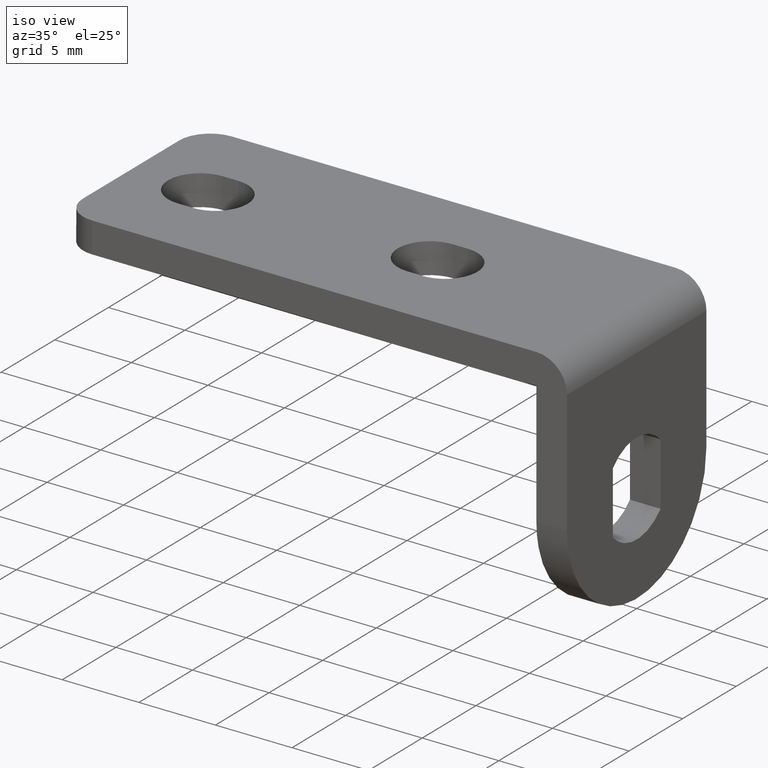
[diagram: clean part render]
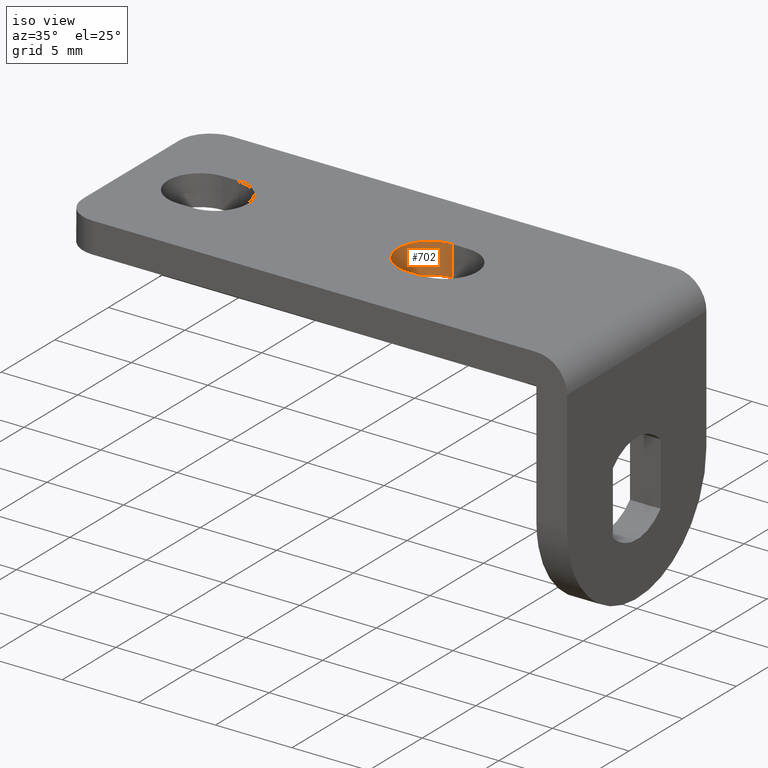
[diagram: same view with one face highlighted and labeled with its STEP entity id]
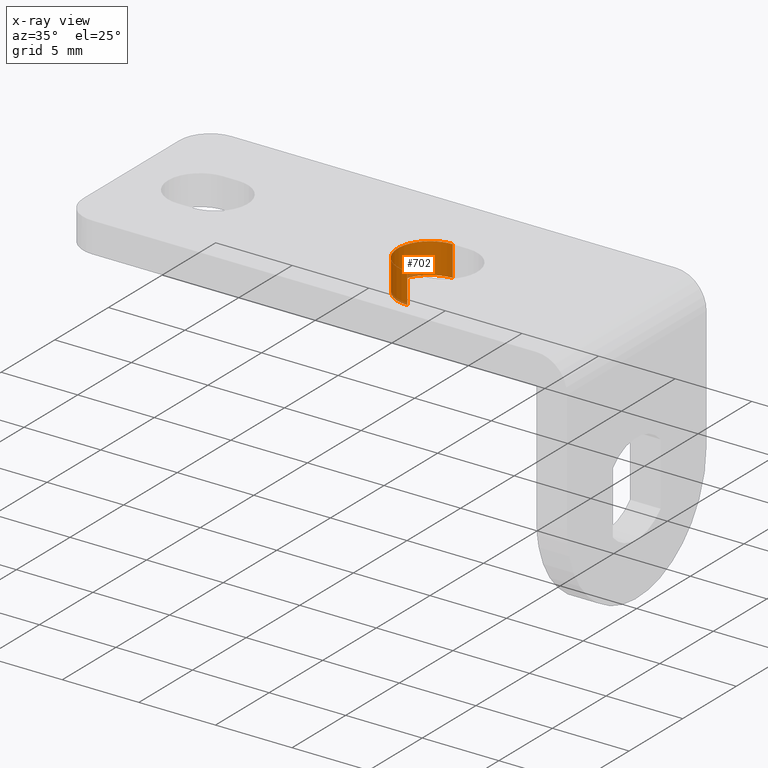
[diagram: x-ray of the same camera — body ghosted, the highlighted face saturated]
A machine part, iso view. The second image highlights one B-rep face of the part: STEP entity #702.
The next image is the same camera in x-ray: the body ghosted, the highlighted face saturated — about 3% of this face is hidden behind the body in this view.
In plain terms, the highlighted face is a freeform B-spline surface patch.
Its self-contained STEP definition (entity closure, byte-faithful):
#595=CARTESIAN_POINT('',(-13.500006999999981,2.100000000000000,8.0));
#596=VERTEX_POINT('',#595);
#611=CARTESIAN_POINT('',(-13.500007000000000,2.100000000000000,10.0));
#612=VERTEX_POINT('',#611);
#618=CARTESIAN_POINT('',(-13.500007000000000,2.100000000000000,10.0));
#619=CARTESIAN_POINT('',(-13.500006999999981,2.100000000000000,8.0));
#620=QUASI_UNIFORM_CURVE('',1,(#618,#619),.UNSPECIFIED.,.F.,.U.);
#621=EDGE_CURVE('',#612,#596,#620,.T.);
#626=CARTESIAN_POINT('',(-13.445035408553460,2.099280382448669,10.050000000000010));
#627=CARTESIAN_POINT('',(-13.445035408553460,2.099280382448669,7.948749999999782));
#628=CARTESIAN_POINT('',(-15.657215352970093,2.157208352970096,10.050000000000008));
#629=CARTESIAN_POINT('',(-15.657215352970093,2.157208352970096,7.948749999999782));
#630=CARTESIAN_POINT('',(-15.599287382448670,-0.054971591446529,10.050000000000010));
#631=CARTESIAN_POINT('',(-15.599287382448670,-0.054971591446529,7.948749999999782));
#632=CARTESIAN_POINT('',(-15.541359411927246,-2.267151535863152,10.050000000000008));
#633=CARTESIAN_POINT('',(-15.541359411927246,-2.267151535863152,7.948749999999782));
#634=CARTESIAN_POINT('',(-13.335242898971529,-2.093526400839565,10.050000000000010));
#635=CARTESIAN_POINT('',(-13.335242898971529,-2.093526400839565,7.948749999999782));
#643=(BOUNDED_SURFACE()B_SPLINE_SURFACE(1,2,((#626,#628,#630,#632,#634),(#627,#629,#631,#633,#635)),.UNSPECIFIED.,.F.,.F.,.U.)B_SPLINE_SURFACE_WITH_KNOTS((2,2),(3,2,3),(0.0,2.101250000000226),(0.0,3.608924810121421,7.217849620242841),.UNSPECIFIED.)GEOMETRIC_REPRESENTATION_ITEM()RATIONAL_B_SPLINE_SURFACE(((1.0,0.688354575693754,1.0,0.688354575693754,1.0),(1.0,0.688354575693754,1.0,0.688354575693754,1.0)))REPRESENTATION_ITEM('')SURFACE());
#644=CARTESIAN_POINT('',(-13.500007000000000,-2.100000000000000,7.999999999999789));
#645=VERTEX_POINT('',#644);
#646=CARTESIAN_POINT('',(-13.500007000000000,-2.100000000000000,7.999999999999789));
#647=CARTESIAN_POINT('',(-13.646039634358379,-2.100022805771919,7.999999999999815));
#648=CARTESIAN_POINT('',(-13.903738606120459,-2.073005345932298,7.999999999999752));
#649=CARTESIAN_POINT('',(-14.292048743104299,-1.957823036940574,7.999999999999784));
#650=CARTESIAN_POINT('',(-14.630457292051780,-1.784879344575691,7.999999999999869));
#651=CARTESIAN_POINT('',(-14.909127947576120,-1.567373115020243,7.999999999999724));
#652=CARTESIAN_POINT('',(-15.134645226752580,-1.330508517353600,7.999999999999872));
#653=CARTESIAN_POINT('',(-15.308397723602130,-1.083788247525932,7.999999999999707));
#654=CARTESIAN_POINT('',(-15.484335930812550,-0.728948819464107,7.999999999999893));
#655=CARTESIAN_POINT('',(-15.590501179254680,-0.335946812986328,7.999999999999747));
#656=CARTESIAN_POINT('',(-15.609728862659770,0.112245667304152,7.999999999999794));
#657=CARTESIAN_POINT('',(-15.555260588715379,0.479392649945114,7.999999999999796));
#658=CARTESIAN_POINT('',(-15.420199462083710,0.888352681667046,7.999999999999790));
#659=CARTESIAN_POINT('',(-15.197605637656560,1.270323909169436,7.999999999999790));
#660=CARTESIAN_POINT('',(-14.885867682812499,1.593663304485657,7.999999999999790));
#661=CARTESIAN_POINT('',(-14.598239702060679,1.798872462709379,7.999999999999834));
#662=CARTESIAN_POINT('',(-14.283910041818940,1.959537271376855,7.999999999999500));
#663=CARTESIAN_POINT('',(-13.920926632353090,2.072081729504553,8.000000000000542));
#664=CARTESIAN_POINT('',(-13.637450627196070,2.100013201747897,7.999999999999234));
#665=CARTESIAN_POINT('',(-13.500006999999981,2.100000000000000,8.0));
#666=B_SPLINE_CURVE_WITH_KNOTS('',3,(#646,#647,#648,#649,#650,#651,#652,#653,#654,#655,#656,#657,#658,#659,#660,#661,#662,#663,#664,#665),.UNSPECIFIED.,.F.,.U.,(4,1,1,1,1,1,1,1,1,1,1,1,1,1,1,1,1,4),(0.000000082416273,0.438095971261449,0.773130827162061,1.211241074817751,1.572041315020988,1.829746943894129,2.190551635923618,2.474013922413830,3.015206400834967,3.401779041634921,3.814114020181115,4.123372118202219,4.690315874199701,5.128433598969579,5.463459614809487,5.746946299641612,6.185053441995901,6.597385968105096),.UNSPECIFIED.);
#667=EDGE_CURVE('',#645,#596,#666,.T.);
#668=ORIENTED_EDGE('',*,*,#667,.T.);
#669=ORIENTED_EDGE('',*,*,#621,.F.);
#670=CARTESIAN_POINT('',(-13.500007000000000,-2.100000000000000,10.0));
#671=VERTEX_POINT('',#670);
#672=CARTESIAN_POINT('',(-13.500007000000000,-2.100000000000000,10.0));
#673=CARTESIAN_POINT('',(-13.637451562665101,-2.100016803283368,10.000000000000011));
#674=CARTESIAN_POINT('',(-13.920922201259300,-2.072074884993291,9.999999999999998));
#675=CARTESIAN_POINT('',(-14.300406723454440,-1.954425619638527,9.999999999999996));
#676=CARTESIAN_POINT('',(-14.681665348502531,-1.753643900027021,10.000000000000030));
#677=CARTESIAN_POINT('',(-14.989437684087569,-1.501088456339610,9.999999999999952));
#678=CARTESIAN_POINT('',(-15.228148701547420,-1.206467980786982,10.000000000000060));
#679=CARTESIAN_POINT('',(-15.381487142047650,-0.947049432547162,9.999999999999924));
#680=CARTESIAN_POINT('',(-15.505206774895260,-0.653485568572398,10.000000000000030));
#681=CARTESIAN_POINT('',(-15.591092631598359,-0.301498593884615,9.999999999999941));
#682=CARTESIAN_POINT('',(-15.611859062130851,0.120941290525480,10.000000000000050));
#683=CARTESIAN_POINT('',(-15.543212098573290,0.547587662544812,9.999999999999886));
#684=CARTESIAN_POINT('',(-15.387875980353140,0.950259642555457,10.000000000000220));
#685=CARTESIAN_POINT('',(-15.138523364283101,1.344094189295564,9.999999999999291));
#686=CARTESIAN_POINT('',(-14.822116816581410,1.652867679313750,10.000000000000460));
#687=CARTESIAN_POINT('',(-14.493160710414360,1.858262145407780,9.999999999999895));
#688=CARTESIAN_POINT('',(-14.202043686875840,1.987319088268077,9.999999999999846));
#689=CARTESIAN_POINT('',(-13.877970064770830,2.077002645244425,10.000000000000380));
#690=CARTESIAN_POINT('',(-13.628856948247240,2.100012822689684,9.999999999999902));
#691=CARTESIAN_POINT('',(-13.500007000000000,2.100000000000000,10.0));
#692=B_SPLINE_CURVE_WITH_KNOTS('',3,(#672,#673,#674,#675,#676,#677,#678,#679,#680,#681,#682,#683,#684,#685,#686,#687,#688,#689,#690,#691),.UNSPECIFIED.,.F.,.U.,(4,1,1,1,1,1,1,1,1,1,1,1,1,1,1,1,1,4),(0.000000080648022,0.412333834519854,0.850430284366817,1.185468036254844,1.700890399715891,2.035913619555415,2.319398531722619,2.602890836265362,2.989448652149423,3.401758216657851,3.865637727056650,4.277981434250715,4.690328892159094,5.257293949704035,5.592327367436325,5.850031037810568,6.210835966412354,6.597385968107798),.UNSPECIFIED.);
#693=EDGE_CURVE('',#671,#612,#692,.T.);
#694=ORIENTED_EDGE('',*,*,#693,.F.);
#695=CARTESIAN_POINT('',(-13.500007000000000,-2.100000000000000,10.0));
#696=CARTESIAN_POINT('',(-13.500007000000000,-2.100000000000000,7.999999999999789));
#697=QUASI_UNIFORM_CURVE('',1,(#695,#696),.UNSPECIFIED.,.F.,.U.);
#698=EDGE_CURVE('',#671,#645,#697,.T.);
#699=ORIENTED_EDGE('',*,*,#698,.T.);
#700=EDGE_LOOP('',(#668,#669,#694,#699));
#701=FACE_OUTER_BOUND('',#700,.T.);
#702=ADVANCED_FACE('',(#701),#643,.F.);